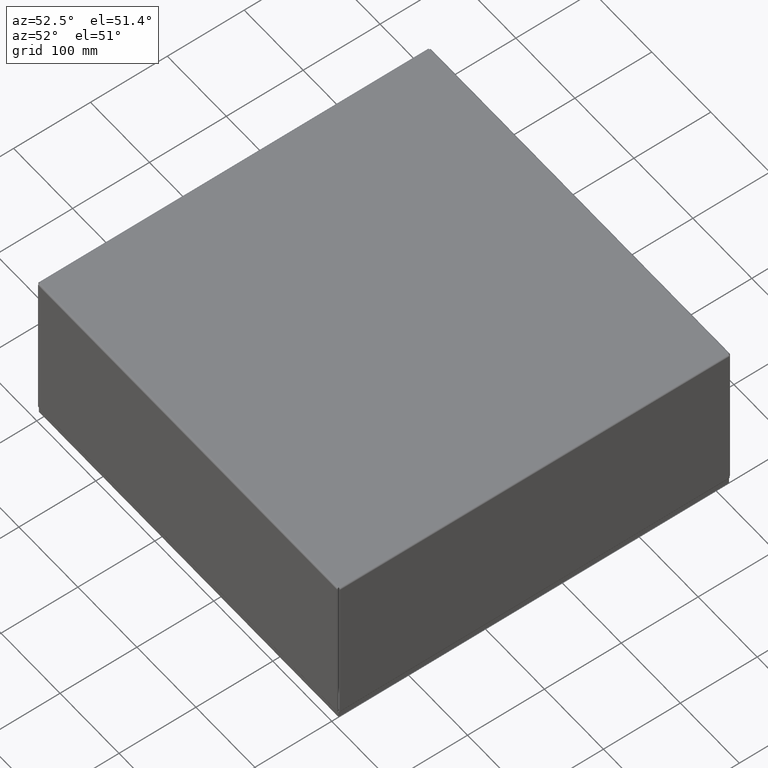
[diagram: clean part render]
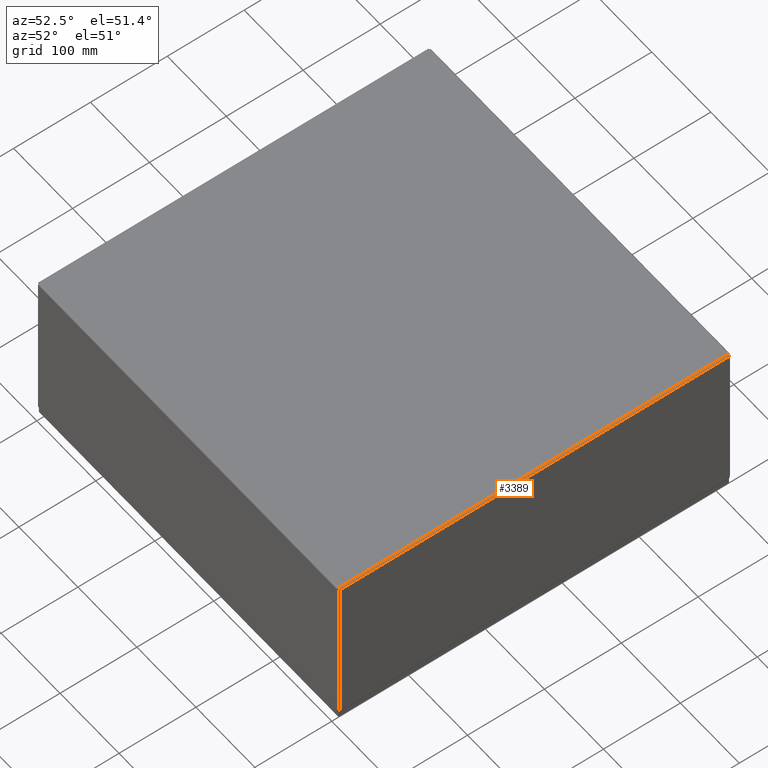
[diagram: same view with one face highlighted and labeled with its STEP entity id]
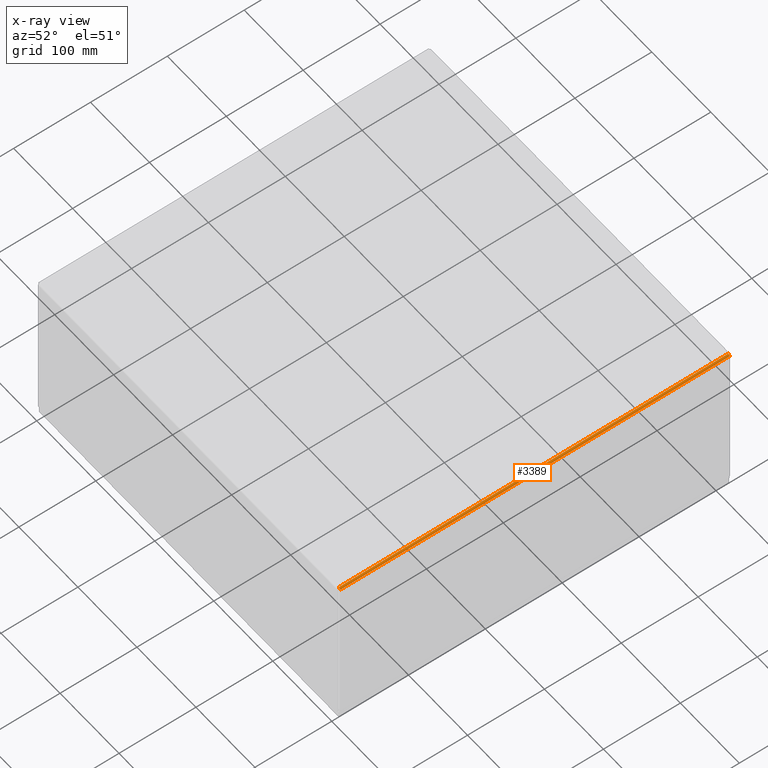
[diagram: x-ray of the same camera — body ghosted, the highlighted face saturated]
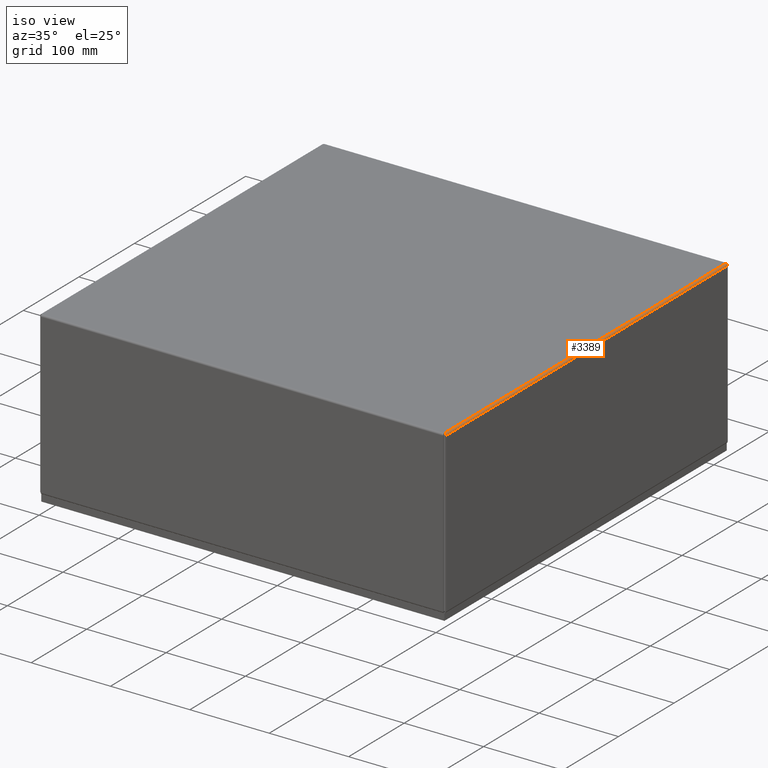
[diagram: same view with one face highlighted and labeled with its STEP entity id]
A machine part, auxiliary view. The second image highlights one B-rep face of the part: STEP entity #3389.
The next image is the same camera in x-ray: the body ghosted, the highlighted face saturated — about 0% of this face is hidden behind the body in this view.
A second angle (iso view) of the same face is appended — the face is thin or edge-on in the first view.
In plain terms, the highlighted cylindrical surface (edge-blend (fillet) strip) has radius 2.2758 mm, axis along (-0, 1, 0).
Its self-contained STEP definition (entity closure, byte-faithful):
#459=B_SPLINE_CURVE_WITH_KNOTS($,3,(#5457,#5458,#5459,#5460,#5461,#5462,
#5463),.UNSPECIFIED.,.F.,.F.,(4,3,4),(0.,0.673198425769239,1.57079632679489),
 .UNSPECIFIED.);
#460=B_SPLINE_CURVE_WITH_KNOTS($,3,(#5466,#5467,#5468,#5469,#5470,#5471,
#5472),.UNSPECIFIED.,.F.,.F.,(4,3,4),(0.,0.897597901025651,1.57079632679489),
 .UNSPECIFIED.);
#581=LINE($,#5445,#793);
#587=LINE($,#5465,#799);
#793=VECTOR($,#4199,19.9628578643763);
#799=VECTOR($,#4211,19.9458);
#1107=FACE_OUTER_BOUND($,#1339,.T.);
#1339=EDGE_LOOP($,(#2595,#2596,#2597,#2598));
#1757=VERTEX_POINT($,#5442);
#1758=VERTEX_POINT($,#5444);
#1761=VERTEX_POINT($,#5456);
#1762=VERTEX_POINT($,#5464);
#2071=EDGE_CURVE($,#1757,#1758,#581,.T.);
#2077=EDGE_CURVE($,#1761,#1757,#459,.T.);
#2078=EDGE_CURVE($,#1762,#1761,#587,.T.);
#2079=EDGE_CURVE($,#1758,#1762,#460,.T.);
#2595=ORIENTED_EDGE($,*,*,#2071,.F.);
#2596=ORIENTED_EDGE($,*,*,#2077,.F.);
#2597=ORIENTED_EDGE($,*,*,#2078,.F.);
#2598=ORIENTED_EDGE($,*,*,#2079,.F.);
#3167=CYLINDRICAL_SURFACE($,#3628,0.0896000000000001);
#3389=ADVANCED_FACE($,(#1107),#3167,.T.);
#3628=AXIS2_PLACEMENT_3D($,#5455,#4209,#4210);
#4199=DIRECTION($,(2.12887550049545E-016,-1.,-3.50995830398427E-031));
#4209=DIRECTION('center_axis',(-2.7800371135525E-016,1.,0.));
#4210=DIRECTION('ref_axis',(1.,0.,5.39661936248409E-015));
#4211=DIRECTION($,(-2.80501393327137E-016,1.,0.));
#5442=CARTESIAN_POINT('',(20.125,20.0439289321881,-0.0155999999999986));
#5444=CARTESIAN_POINT('',(20.125,0.0810710678118666,-0.0155999999999986));
#5445=CARTESIAN_POINT($,(20.125,10.0625,-0.0155999999999986));
#5455=CARTESIAN_POINT('Origin',(20.0354,20.0439289321881,-0.0156));
#5456=CARTESIAN_POINT('',(20.0354,20.0354,0.074));
#5457=CARTESIAN_POINT('Ctrl Pts',(20.0354,20.0354,0.074));
#5458=CARTESIAN_POINT('Ctrl Pts',(20.055506192983,20.036618418884,0.0740000000000001));
#5459=CARTESIAN_POINT('Ctrl Pts',(20.0756372972501,20.037836837768,0.0669701640625674));
#5460=CARTESIAN_POINT('Ctrl Pts',(20.091277337924,20.0390552566521,0.0544327245571321));
#5461=CARTESIAN_POINT('Ctrl Pts',(20.1121307254893,20.0406798151641,0.0377161385498849));
#5462=CARTESIAN_POINT('Ctrl Pts',(20.125,20.0423043736761,0.0112082573106331));
#5463=CARTESIAN_POINT('Ctrl Pts',(20.125,20.0439289321881,-0.0155999999999995));
#5464=CARTESIAN_POINT('',(20.0354,0.0896,0.074));
#5465=CARTESIAN_POINT($,(20.0354,5.07605,0.074));
#5466=CARTESIAN_POINT('Ctrl Pts',(20.125,0.0810710678118665,-0.0155999999999995));
#5467=CARTESIAN_POINT('Ctrl Pts',(20.125,0.0826956263238919,0.0112082573106332));
#5468=CARTESIAN_POINT('Ctrl Pts',(20.1121307782729,0.0843201848359174,0.0377162018827949));
#5469=CARTESIAN_POINT('Ctrl Pts',(20.0912773831671,0.0859447433479429,0.0544327788424835));
#5470=CARTESIAN_POINT('Ctrl Pts',(20.0756373368378,0.087163162231962,0.0669702115622499));
#5471=CARTESIAN_POINT('Ctrl Pts',(20.055506192983,0.088381581115981,0.0740000000000003));
#5472=CARTESIAN_POINT('Ctrl Pts',(20.0354,0.0896000000000001,0.0740000000000001));